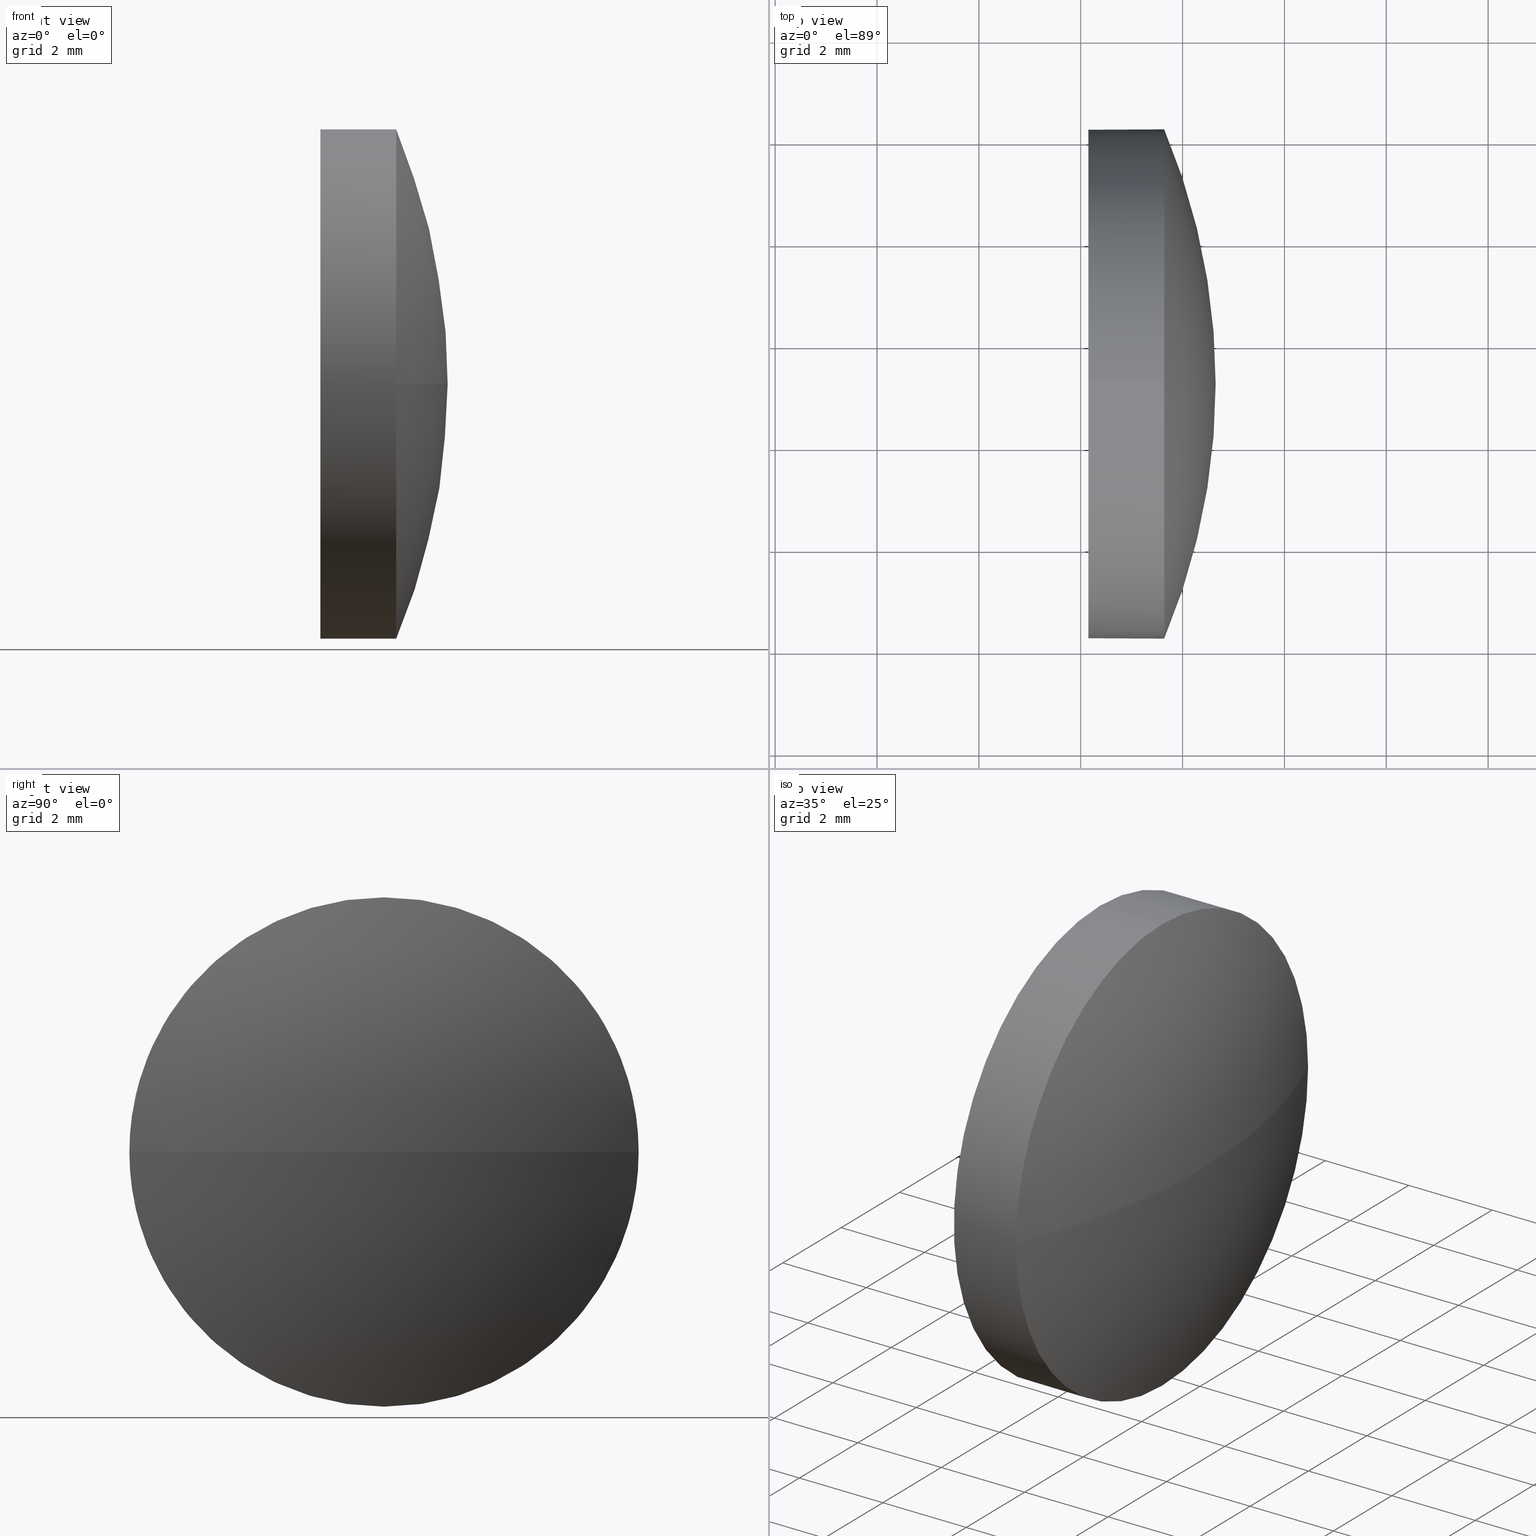
[diagram: canonical four-view strip — front | top / right | iso, engineering-drawing reading convention]
A machine part, canonical four-view strip (front | top / right | iso — engineering-drawing reading convention). The complete STEP part file that produces these views, byte-faithful:
ISO-10303-21;
HEADER;
FILE_DESCRIPTION (( 'STEP AP214' ),
    '1' );
FILE_NAME ('100189.STEP',
    '2019-05-21T06:12:37',
    ( '' ),
    ( '' ),
    'SwSTEP 2.0',
    'SolidWorks 2016',
    '' );
FILE_SCHEMA (( 'AUTOMOTIVE_DESIGN' ));
ENDSEC;

DATA;
#1 =( LENGTH_UNIT ( ) NAMED_UNIT ( * ) SI_UNIT ( .MILLI., .METRE. ) );
#2 = DIRECTION ( 'NONE',  ( 0.0000000000000000000, 0.0000000000000000000, -1.000000000000000000 ) ) ;
#3 = PRODUCT_CONTEXT ( 'NONE', #145, 'mechanical' ) ;
#4 =( LENGTH_UNIT ( ) NAMED_UNIT ( * ) SI_UNIT ( .MILLI., .METRE. ) );
#5 = COLOUR_RGB ( '',1.000000000000000000, 1.000000000000000000, 1.000000000000000000 ) ;
#6 = ORIENTED_EDGE ( 'NONE', *, *, #93, .F. ) ;
#7 = VERTEX_POINT ( 'NONE', #115 ) ;
#8 = ADVANCED_FACE ( 'NONE', ( #32 ), #22, .T. ) ;
#9 = CARTESIAN_POINT ( 'NONE',  ( 664.6498540969859100, 171.2161113071354600, 0.0000000000000000000 ) ) ;
#10 = DIRECTION ( 'NONE',  ( -1.000000000000000000, -0.0000000000000000000, -0.0000000000000000000 ) ) ;
#11 = DIRECTION ( 'NONE',  ( -1.000000000000000000, -0.0000000000000000000, -0.0000000000000000000 ) ) ;
#12 = CARTESIAN_POINT ( 'NONE',  ( 661.3521818429206900, 171.2161113071353800, 0.0000000000000000000 ) ) ;
#13 =( NAMED_UNIT ( * ) PLANE_ANGLE_UNIT ( ) SI_UNIT ( $, .RADIAN. ) );
#14 = ORIENTED_EDGE ( 'NONE', *, *, #20, .F. ) ;
#15 = SURFACE_SIDE_STYLE ('',( #175 ) ) ;
#16 = CARTESIAN_POINT ( 'NONE',  ( 663.6398540969860300, 171.2161113071353800, 0.0000000000000000000 ) ) ;
#17 = FILL_AREA_STYLE_COLOUR ( '', #133 ) ;
#18 = CIRCLE ( 'NONE', #58, 12.88123762376225300 ) ;
#19 = VERTEX_POINT ( 'NONE', #9 ) ;
#20 = EDGE_CURVE ( 'NONE', #81, #162, #181, .T. ) ;
#21 =( GEOMETRIC_REPRESENTATION_CONTEXT ( 3 ) GLOBAL_UNCERTAINTY_ASSIGNED_CONTEXT ( ( #80 ) ) GLOBAL_UNIT_ASSIGNED_CONTEXT ( ( #43, #75, #165 ) ) REPRESENTATION_CONTEXT ( 'NONE', 'WORKASPACE' ) );
#22 = CYLINDRICAL_SURFACE ( 'NONE', #29, 5.000000000000004400 ) ;
#23 = ORIENTED_EDGE ( 'NONE', *, *, #74, .F. ) ;
#24 = DIRECTION ( 'NONE',  ( 0.0000000000000000000, 0.0000000000000000000, 1.000000000000000000 ) ) ;
#25 = ORIENTED_EDGE ( 'NONE', *, *, #120, .T. ) ;
#26 = CARTESIAN_POINT ( 'NONE',  ( 651.7686164732236900, 171.2161113071354600, 0.0000000000000000000 ) ) ;
#27 = AXIS2_PLACEMENT_3D ( 'NONE', #148, #134, #61 ) ;
#28 =( NAMED_UNIT ( * ) SI_UNIT ( $, .STERADIAN. ) SOLID_ANGLE_UNIT ( ) );
#29 = AXIS2_PLACEMENT_3D ( 'NONE', #50, #11, #100 ) ;
#30 = SURFACE_STYLE_USAGE ( .BOTH. , #105 ) ;
#31 = SPHERICAL_SURFACE ( 'NONE', #98, 12.88123762376226400 ) ;
#32 = FACE_OUTER_BOUND ( 'NONE', #169, .T. ) ;
#33 = DIRECTION ( 'NONE',  ( 0.0000000000000000000, -1.000000000000000000, 0.0000000000000000000 ) ) ;
#34 = ORIENTED_EDGE ( 'NONE', *, *, #93, .T. ) ;
#35 = AXIS2_PLACEMENT_3D ( 'NONE', #16, #116, #121 ) ;
#36 = UNCERTAINTY_MEASURE_WITH_UNIT (LENGTH_MEASURE( 1.000000000000000100E-005 ), #1, 'distance_accuracy_value', 'NONE');
#37 = PRODUCT_DEFINITION_FORMATION_WITH_SPECIFIED_SOURCE ( '�κ�', '', #183, .NOT_KNOWN. ) ;
#38 = AXIS2_PLACEMENT_3D ( 'NONE', #12, #66, #24 ) ;
#39 = EDGE_LOOP ( 'NONE', ( #23, #56, #94, #102 ) ) ;
#40 = DIRECTION ( 'NONE',  ( 0.0000000000000000000, -1.000000000000000000, -1.224646799147354200E-016 ) ) ;
#41 = CARTESIAN_POINT ( 'NONE',  ( 662.1498540969860200, 171.2161113071353800, 5.000000000000004400 ) ) ;
#42 = EDGE_CURVE ( 'NONE', #162, #44, #147, .T. ) ;
#43 =( LENGTH_UNIT ( ) NAMED_UNIT ( * ) SI_UNIT ( .MILLI., .METRE. ) );
#44 = VERTEX_POINT ( 'NONE', #41 ) ;
#45 = FILL_AREA_STYLE ('',( #17 ) ) ;
#46 = SURFACE_STYLE_USAGE ( .BOTH. , #15 ) ;
#47 = EDGE_CURVE ( 'NONE', #126, #7, #63, .T. ) ;
#48 = PRESENTATION_STYLE_ASSIGNMENT (( #46 ) ) ;
#49 = EDGE_LOOP ( 'NONE', ( #34, #155 ) ) ;
#50 = CARTESIAN_POINT ( 'NONE',  ( 661.3521818429206900, 171.2161113071353800, 0.0000000000000000000 ) ) ;
#51 = PRESENTATION_STYLE_ASSIGNMENT (( #30 ) ) ;
#52 = CIRCLE ( 'NONE', #65, 5.000000000000004400 ) ;
#53 = AXIS2_PLACEMENT_3D ( 'NONE', #113, #129, #103 ) ;
#54 = CARTESIAN_POINT ( 'NONE',  ( 661.3521818429206900, 171.2161113071353800, 5.000000000000004400 ) ) ;
#55 = DIRECTION ( 'NONE',  ( 0.0000000000000000000, 0.0000000000000000000, 1.000000000000000000 ) ) ;
#56 = ORIENTED_EDGE ( 'NONE', *, *, #154, .T. ) ;
#57 = DIRECTION ( 'NONE',  ( 1.000000000000000000, 0.0000000000000000000, 0.0000000000000000000 ) ) ;
#58 = AXIS2_PLACEMENT_3D ( 'NONE', #131, #186, #40 ) ;
#59 = PRODUCT_DEFINITION_CONTEXT ( 'detailed design', #144, 'design' ) ;
#60 =( GEOMETRIC_REPRESENTATION_CONTEXT ( 3 ) GLOBAL_UNCERTAINTY_ASSIGNED_CONTEXT ( ( #71 ) ) GLOBAL_UNIT_ASSIGNED_CONTEXT ( ( #4, #164, #78 ) ) REPRESENTATION_CONTEXT ( 'NONE', 'WORKASPACE' ) );
#61 = DIRECTION ( 'NONE',  ( 1.000000000000000000, 0.0000000000000000000, 0.0000000000000000000 ) ) ;
#62 = ORIENTED_EDGE ( 'NONE', *, *, #74, .T. ) ;
#63 = CIRCLE ( 'NONE', #128, 5.000000000000004400 ) ;
#64 = ADVANCED_FACE ( 'NONE', ( #106 ), #130, .T. ) ;
#65 = AXIS2_PLACEMENT_3D ( 'NONE', #112, #69, #184 ) ;
#66 = DIRECTION ( 'NONE',  ( -1.000000000000000000, -0.0000000000000000000, -0.0000000000000000000 ) ) ;
#67 = CLOSED_SHELL ( 'NONE', ( #64, #96, #84, #8, #125 ) ) ;
#68 = AXIS2_PLACEMENT_3D ( 'NONE', #146, #57, #79 ) ;
#69 = DIRECTION ( 'NONE',  ( -1.000000000000000000, -0.0000000000000000000, -0.0000000000000000000 ) ) ;
#70 = DIRECTION ( 'NONE',  ( 0.0000000000000000000, -1.000000000000000000, 0.0000000000000000000 ) ) ;
#71 = UNCERTAINTY_MEASURE_WITH_UNIT (LENGTH_MEASURE( 1.000000000000000100E-005 ), #4, 'distance_accuracy_value', 'NONE');
#72 = CIRCLE ( 'NONE', #123, 5.000000000000004400 ) ;
#73 = CARTESIAN_POINT ( 'NONE',  ( 663.6398540969860300, 166.2161113071354900, 0.0000000000000000000 ) ) ;
#74 = EDGE_CURVE ( 'NONE', #19, #126, #18, .T. ) ;
#75 =( NAMED_UNIT ( * ) PLANE_ANGLE_UNIT ( ) SI_UNIT ( $, .RADIAN. ) );
#76 = DIRECTION ( 'NONE',  ( -1.000000000000000000, -0.0000000000000000000, -0.0000000000000000000 ) ) ;
#77 = CIRCLE ( 'NONE', #35, 5.000000000000004400 ) ;
#78 =( NAMED_UNIT ( * ) SI_UNIT ( $, .STERADIAN. ) SOLID_ANGLE_UNIT ( ) );
#79 = DIRECTION ( 'NONE',  ( 0.0000000000000000000, 0.0000000000000000000, -1.000000000000000000 ) ) ;
#80 = UNCERTAINTY_MEASURE_WITH_UNIT (LENGTH_MEASURE( 1.000000000000000100E-005 ), #43, 'distance_accuracy_value', 'NONE');
#81 = VERTEX_POINT ( 'NONE', #73 ) ;
#82 = STYLED_ITEM ( 'NONE', ( #48 ), #117 ) ;
#83 = EDGE_CURVE ( 'NONE', #7, #81, #52, .T. ) ;
#84 = ADVANCED_FACE ( 'NONE', ( #97 ), #170, .T. ) ;
#85 = ORIENTED_EDGE ( 'NONE', *, *, #42, .T. ) ;
#86 = SHAPE_DEFINITION_REPRESENTATION ( #101, #117 ) ;
#87 = DIRECTION ( 'NONE',  ( -1.000000000000000000, -0.0000000000000000000, -0.0000000000000000000 ) ) ;
#88 = ORIENTED_EDGE ( 'NONE', *, *, #150, .F. ) ;
#89 = AXIS2_PLACEMENT_3D ( 'NONE', #26, #158, #70 ) ;
#90 = DIRECTION ( 'NONE',  ( 0.0000000000000000000, 0.0000000000000000000, 1.000000000000000000 ) ) ;
#91 = ORIENTED_EDGE ( 'NONE', *, *, #83, .T. ) ;
#92 = DIRECTION ( 'NONE',  ( -1.000000000000000000, -0.0000000000000000000, -0.0000000000000000000 ) ) ;
#93 = EDGE_CURVE ( 'NONE', #44, #124, #72, .T. ) ;
#94 = ORIENTED_EDGE ( 'NONE', *, *, #83, .F. ) ;
#95 = SURFACE_STYLE_FILL_AREA ( #159 ) ;
#96 = ADVANCED_FACE ( 'NONE', ( #153 ), #31, .T. ) ;
#97 = FACE_OUTER_BOUND ( 'NONE', #39, .T. ) ;
#98 = AXIS2_PLACEMENT_3D ( 'NONE', #156, #90, #33 ) ;
#99 = ORIENTED_EDGE ( 'NONE', *, *, #47, .T. ) ;
#100 = DIRECTION ( 'NONE',  ( 0.0000000000000000000, 0.0000000000000000000, 1.000000000000000000 ) ) ;
#101 = PRODUCT_DEFINITION_SHAPE ( 'NONE', 'NONE',  #132 ) ;
#102 = ORIENTED_EDGE ( 'NONE', *, *, #47, .F. ) ;
#103 = DIRECTION ( 'NONE',  ( 0.0000000000000000000, 0.0000000000000000000, 1.000000000000000000 ) ) ;
#104 = CARTESIAN_POINT ( 'NONE',  ( 661.3521818429206900, 171.2161113071353800, -5.000000000000004400 ) ) ;
#105 = SURFACE_SIDE_STYLE ('',( #95 ) ) ;
#106 = FACE_OUTER_BOUND ( 'NONE', #111, .T. ) ;
#107 = EDGE_LOOP ( 'NONE', ( #167, #62, #140, #14 ) ) ;
#108 = EDGE_CURVE ( 'NONE', #124, #44, #180, .T. ) ;
#109 = FACE_OUTER_BOUND ( 'NONE', #49, .T. ) ;
#110 = MANIFOLD_SOLID_BREP ( '��ת1', #67 ) ;
#111 = EDGE_LOOP ( 'NONE', ( #99, #122, #6, #157, #25 ) ) ;
#112 = CARTESIAN_POINT ( 'NONE',  ( 663.6398540969860300, 171.2161113071353800, 0.0000000000000000000 ) ) ;
#113 = CARTESIAN_POINT ( 'NONE',  ( 663.6398540969860300, 171.2161113071353800, 0.0000000000000000000 ) ) ;
#114 = LINE ( 'NONE', #104, #151 ) ;
#115 = CARTESIAN_POINT ( 'NONE',  ( 663.6398540969860300, 171.2161113071353800, -5.000000000000004400 ) ) ;
#116 = DIRECTION ( 'NONE',  ( -1.000000000000000000, -0.0000000000000000000, -0.0000000000000000000 ) ) ;
#117 = ADVANCED_BREP_SHAPE_REPRESENTATION ( '100189', ( #110, #27 ), #60 ) ;
#118 = DIRECTION ( 'NONE',  ( 0.0000000000000000000, 0.0000000000000000000, 1.000000000000000000 ) ) ;
#119 = CARTESIAN_POINT ( 'NONE',  ( 662.1498540969860200, 171.2161113071353800, -5.000000000000004400 ) ) ;
#120 = EDGE_CURVE ( 'NONE', #162, #126, #77, .T. ) ;
#121 = DIRECTION ( 'NONE',  ( 0.0000000000000000000, 0.0000000000000000000, 1.000000000000000000 ) ) ;
#122 = ORIENTED_EDGE ( 'NONE', *, *, #150, .T. ) ;
#123 = AXIS2_PLACEMENT_3D ( 'NONE', #171, #10, #118 ) ;
#124 = VERTEX_POINT ( 'NONE', #119 ) ;
#125 = ADVANCED_FACE ( 'NONE', ( #109 ), #135, .F. ) ;
#126 = VERTEX_POINT ( 'NONE', #137 ) ;
#127 = CARTESIAN_POINT ( 'NONE',  ( 663.6398540969860300, 171.2161113071353800, 0.0000000000000000000 ) ) ;
#128 = AXIS2_PLACEMENT_3D ( 'NONE', #127, #142, #173 ) ;
#129 = DIRECTION ( 'NONE',  ( -1.000000000000000000, -0.0000000000000000000, -0.0000000000000000000 ) ) ;
#130 = CYLINDRICAL_SURFACE ( 'NONE', #38, 5.000000000000004400 ) ;
#131 = CARTESIAN_POINT ( 'NONE',  ( 651.7686164732236900, 171.2161113071354600, 0.0000000000000000000 ) ) ;
#132 = PRODUCT_DEFINITION ( 'δ֪', '', #37, #59 ) ;
#133 = COLOUR_RGB ( '',1.000000000000000000, 1.000000000000000000, 1.000000000000000000 ) ;
#134 = DIRECTION ( 'NONE',  ( 0.0000000000000000000, 0.0000000000000000000, 1.000000000000000000 ) ) ;
#135 = PLANE ( 'NONE',  #68 ) ;
#136 = CARTESIAN_POINT ( 'NONE',  ( 662.1498540969860200, 171.2161113071353800, 0.0000000000000000000 ) ) ;
#137 = CARTESIAN_POINT ( 'NONE',  ( 663.6398540969860300, 176.2161113071353800, 6.123233995736657800E-016 ) ) ;
#138 = ORIENTED_EDGE ( 'NONE', *, *, #108, .F. ) ;
#139 = PRESENTATION_LAYER_ASSIGNMENT (  '', '', ( #82 ) ) ;
#140 = ORIENTED_EDGE ( 'NONE', *, *, #120, .F. ) ;
#141 = VECTOR ( 'NONE', #87, 1000.000000000000000 ) ;
#142 = DIRECTION ( 'NONE',  ( -1.000000000000000000, -0.0000000000000000000, -0.0000000000000000000 ) ) ;
#143 = APPLICATION_PROTOCOL_DEFINITION ( 'draft international standard', 'automotive_design', 1998, #145 ) ;
#144 = APPLICATION_CONTEXT ( 'automotive_design' ) ;
#145 = APPLICATION_CONTEXT ( 'automotive_design' ) ;
#146 = CARTESIAN_POINT ( 'NONE',  ( 662.1498540969860200, 171.2161113071353800, 0.0000000000000000000 ) ) ;
#147 = LINE ( 'NONE', #54, #141 ) ;
#148 = CARTESIAN_POINT ( 'NONE',  ( 0.0000000000000000000, 0.0000000000000000000, 0.0000000000000000000 ) ) ;
#149 = STYLED_ITEM ( 'NONE', ( #51 ), #110 ) ;
#150 = EDGE_CURVE ( 'NONE', #7, #124, #114, .T. ) ;
#151 = VECTOR ( 'NONE', #76, 1000.000000000000000 ) ;
#152 = CIRCLE ( 'NONE', #178, 12.88123762376225300 ) ;
#153 = FACE_OUTER_BOUND ( 'NONE', #107, .T. ) ;
#154 = EDGE_CURVE ( 'NONE', #19, #81, #152, .T. ) ;
#155 = ORIENTED_EDGE ( 'NONE', *, *, #108, .T. ) ;
#156 = CARTESIAN_POINT ( 'NONE',  ( 651.7686164732236900, 171.2161113071354600, 0.0000000000000000000 ) ) ;
#157 = ORIENTED_EDGE ( 'NONE', *, *, #42, .F. ) ;
#158 = DIRECTION ( 'NONE',  ( 0.0000000000000000000, 0.0000000000000000000, 1.000000000000000000 ) ) ;
#159 = FILL_AREA_STYLE ('',( #163 ) ) ;
#160 = AXIS2_PLACEMENT_3D ( 'NONE', #136, #92, #55 ) ;
#161 = APPLICATION_PROTOCOL_DEFINITION ( 'draft international standard', 'automotive_design', 1998, #144 ) ;
#162 = VERTEX_POINT ( 'NONE', #176 ) ;
#163 = FILL_AREA_STYLE_COLOUR ( '', #5 ) ;
#164 =( NAMED_UNIT ( * ) PLANE_ANGLE_UNIT ( ) SI_UNIT ( $, .RADIAN. ) );
#165 =( NAMED_UNIT ( * ) SI_UNIT ( $, .STERADIAN. ) SOLID_ANGLE_UNIT ( ) );
#166 = MECHANICAL_DESIGN_GEOMETRIC_PRESENTATION_REPRESENTATION (  '', ( #82 ), #185 ) ;
#167 = ORIENTED_EDGE ( 'NONE', *, *, #154, .F. ) ;
#168 = MECHANICAL_DESIGN_GEOMETRIC_PRESENTATION_REPRESENTATION (  '', ( #149 ), #21 ) ;
#169 = EDGE_LOOP ( 'NONE', ( #88, #91, #172, #85, #138 ) ) ;
#170 = SPHERICAL_SURFACE ( 'NONE', #89, 12.88123762376226400 ) ;
#171 = CARTESIAN_POINT ( 'NONE',  ( 662.1498540969860200, 171.2161113071353800, 0.0000000000000000000 ) ) ;
#172 = ORIENTED_EDGE ( 'NONE', *, *, #20, .T. ) ;
#173 = DIRECTION ( 'NONE',  ( 0.0000000000000000000, 0.0000000000000000000, 1.000000000000000000 ) ) ;
#174 = CARTESIAN_POINT ( 'NONE',  ( 651.7686164732236900, 171.2161113071354600, 0.0000000000000000000 ) ) ;
#175 = SURFACE_STYLE_FILL_AREA ( #45 ) ;
#176 = CARTESIAN_POINT ( 'NONE',  ( 663.6398540969860300, 171.2161113071353800, 5.000000000000004400 ) ) ;
#177 = DIRECTION ( 'NONE',  ( -1.000000000000000000, 0.0000000000000000000, 0.0000000000000000000 ) ) ;
#178 = AXIS2_PLACEMENT_3D ( 'NONE', #174, #2, #177 ) ;
#179 = PRESENTATION_LAYER_ASSIGNMENT (  '', '', ( #149 ) ) ;
#180 = CIRCLE ( 'NONE', #160, 5.000000000000004400 ) ;
#181 = CIRCLE ( 'NONE', #53, 5.000000000000004400 ) ;
#182 = PRODUCT_RELATED_PRODUCT_CATEGORY ( 'part', '', ( #183 ) ) ;
#183 = PRODUCT ( '100189', '100189', '', ( #3 ) ) ;
#184 = DIRECTION ( 'NONE',  ( 0.0000000000000000000, 0.0000000000000000000, 1.000000000000000000 ) ) ;
#185 =( GEOMETRIC_REPRESENTATION_CONTEXT ( 3 ) GLOBAL_UNCERTAINTY_ASSIGNED_CONTEXT ( ( #36 ) ) GLOBAL_UNIT_ASSIGNED_CONTEXT ( ( #1, #13, #28 ) ) REPRESENTATION_CONTEXT ( 'NONE', 'WORKASPACE' ) );
#186 = DIRECTION ( 'NONE',  ( 0.0000000000000000000, -1.224646799147353200E-016, 1.000000000000000000 ) ) ;
ENDSEC;
END-ISO-10303-21;
